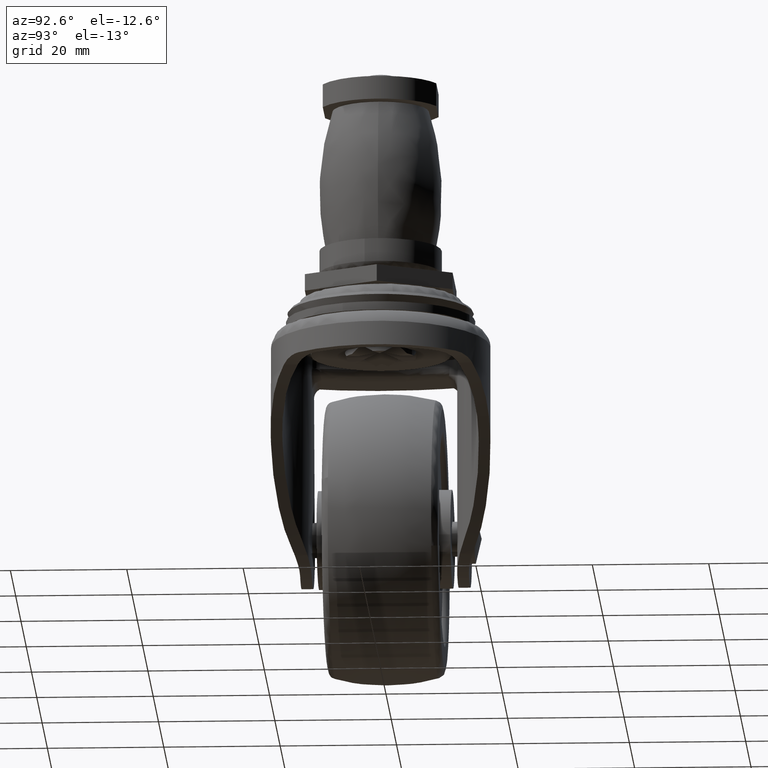
[diagram: clean part render]
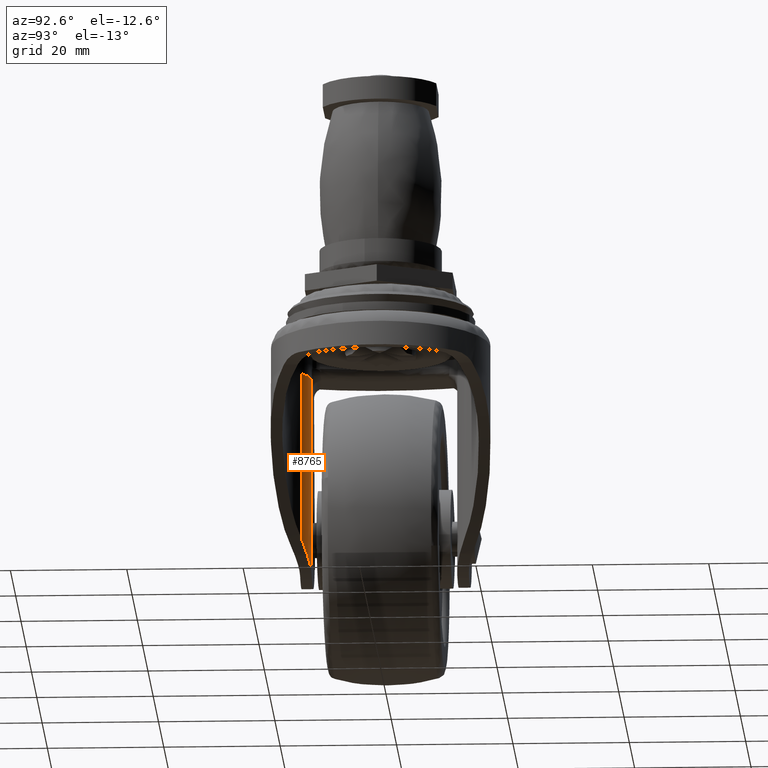
[diagram: same view with one face highlighted and labeled with its STEP entity id]
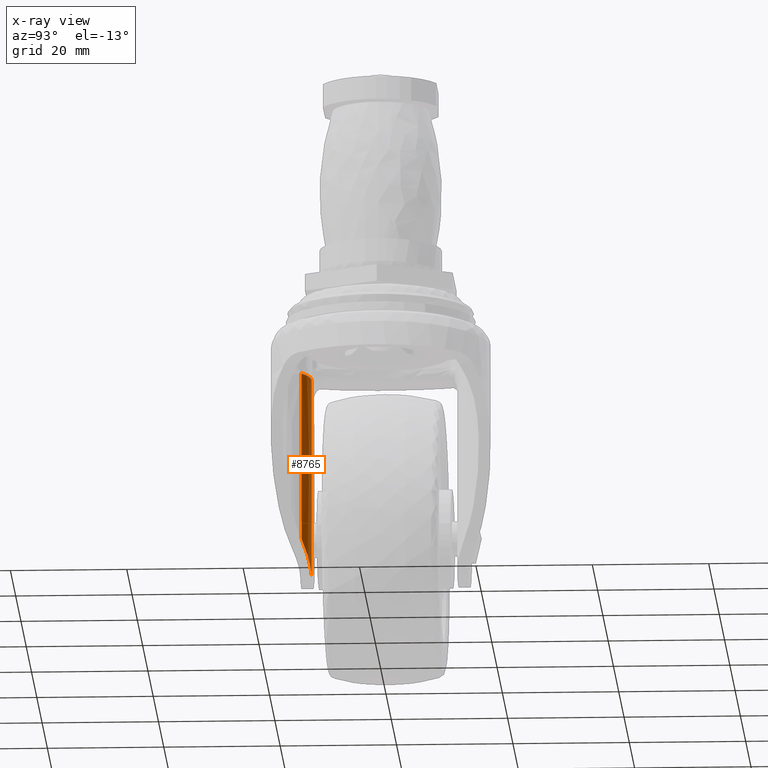
[diagram: x-ray of the same camera — body ghosted, the highlighted face saturated]
A machine part, auxiliary view. The second image highlights one B-rep face of the part: STEP entity #8765.
The next image is the same camera in x-ray: the body ghosted, the highlighted face saturated — about 0% of this face is hidden behind the body in this view.
In plain terms, the highlighted face is a freeform B-spline surface patch.
Its self-contained STEP definition (entity closure, byte-faithful):
#8692=CARTESIAN_POINT('',(-14.611302524693622,-12.503993825917989,-47.996503645575913));
#8693=CARTESIAN_POINT('',(-14.611302524693622,-12.503993825917989,-11.889100374107668));
#8694=CARTESIAN_POINT('',(-11.598037271927742,-12.416936753291690,-47.996503645575899));
#8695=CARTESIAN_POINT('',(-11.598037271927742,-12.416936753291690,-11.889100374107661));
#8696=CARTESIAN_POINT('',(-9.140247712245992,-14.162392824850023,-47.996503645575899));
#8697=CARTESIAN_POINT('',(-9.140247712245992,-14.162392824850023,-11.889100374107668));
#8705=(BOUNDED_SURFACE()B_SPLINE_SURFACE(1,2,((#8692,#8694,#8696),(#8693,#8695,#8697)),.UNSPECIFIED.,.F.,.F.,.U.)B_SPLINE_SURFACE_WITH_KNOTS((2,2),(3,3),(0.0,36.107403271468257),(0.0,5.868813238233783),.UNSPECIFIED.)GEOMETRIC_REPRESENTATION_ITEM()RATIONAL_B_SPLINE_SURFACE(((0.999694770072393,0.946917392037695,0.997551996903967),(0.999694770072393,0.946917392037695,0.997551996903967)))REPRESENTATION_ITEM('')SURFACE());
#8706=CARTESIAN_POINT('',(-14.351389509793160,-12.500240000000000,-47.137314989502897));
#8707=VERTEX_POINT('',#8706);
#8708=CARTESIAN_POINT('',(-11.164195731720181,-13.083483153030320,-44.295090351913252));
#8709=VERTEX_POINT('',#8708);
#8710=CARTESIAN_POINT('',(-14.351389509793179,-12.500240000000000,-47.137314989502897));
#8711=CARTESIAN_POINT('',(-14.039643422530290,-12.500240000000010,-46.946456354502267));
#8712=CARTESIAN_POINT('',(-13.740236062421490,-12.516351815684210,-46.743627083969528));
#8713=CARTESIAN_POINT('',(-13.164320985617699,-12.574175706962730,-46.314976161298169));
#8714=CARTESIAN_POINT('',(-12.887820612245910,-12.615918371230659,-46.089151172388050));
#8715=CARTESIAN_POINT('',(-12.356773760834139,-12.719880512183400,-45.614725025958627));
#8716=CARTESIAN_POINT('',(-12.102230038795170,-12.782120283756530,-45.366124205934447));
#8717=CARTESIAN_POINT('',(-11.736665921107710,-12.887499264150870,-44.975796725130991));
#8718=CARTESIAN_POINT('',(-11.617480767655881,-12.924656577590660,-44.842704237159289));
#8719=CARTESIAN_POINT('',(-11.386003129993570,-13.001924186644059,-44.572348305863237));
#8720=CARTESIAN_POINT('',(-11.273510328952050,-13.042088733910610,-44.434879481031061));
#8721=CARTESIAN_POINT('',(-11.164195731720181,-13.083483153030320,-44.295090351913252));
#8722=B_SPLINE_CURVE_WITH_KNOTS('',3,(#8710,#8711,#8712,#8713,#8714,#8715,#8716,#8717,#8718,#8719,#8720,#8721),.UNSPECIFIED.,.F.,.U.,(4,2,2,2,2,4),(0.0,0.250000000000000,0.500000000000000,0.750000000000000,0.875000000000000,1.0),.UNSPECIFIED.);
#8723=EDGE_CURVE('',#8707,#8709,#8722,.T.);
#8724=ORIENTED_EDGE('',*,*,#8723,.F.);
#8725=CARTESIAN_POINT('',(-14.351389509792821,-12.500240000000000,-12.769768746582860));
#8726=VERTEX_POINT('',#8725);
#8727=CARTESIAN_POINT('',(-14.351389509792821,-12.500240000000000,-12.769768746582860));
#8728=CARTESIAN_POINT('',(-14.351389509793160,-12.500240000000000,-47.137314989502897));
#8729=QUASI_UNIFORM_CURVE('',1,(#8727,#8728),.UNSPECIFIED.,.F.,.U.);
#8730=EDGE_CURVE('',#8726,#8707,#8729,.T.);
#8731=ORIENTED_EDGE('',*,*,#8730,.F.);
#8732=CARTESIAN_POINT('',(-9.354776643714279,-14.014663210831740,-12.769768746582519));
#8733=VERTEX_POINT('',#8732);
#8734=CARTESIAN_POINT('',(-14.351389509792821,-12.500240000000000,-12.769768746582860));
#8735=CARTESIAN_POINT('',(-11.623579838962780,-12.500240000000000,-12.769768746582505));
#8736=CARTESIAN_POINT('',(-9.354776643714269,-14.014663210831721,-12.769768746582500));
#8744=(BOUNDED_CURVE()B_SPLINE_CURVE(2,(#8734,#8735,#8736),.UNSPECIFIED.,.F.,.U.)CURVE()GEOMETRIC_REPRESENTATION_ITEM()QUASI_UNIFORM_CURVE()RATIONAL_B_SPLINE_CURVE((1.0,0.957008556480043,1.0))REPRESENTATION_ITEM(''));
#8745=EDGE_CURVE('',#8726,#8733,#8744,.T.);
#8746=ORIENTED_EDGE('',*,*,#8745,.T.);
#8747=CARTESIAN_POINT('',(-9.354776643714288,-14.014663210831721,-41.863463631811037));
#8748=VERTEX_POINT('',#8747);
#8749=CARTESIAN_POINT('',(-9.354776643714288,-14.014663210831721,-41.863463631811037));
#8750=CARTESIAN_POINT('',(-9.354776643714279,-14.014663210831740,-12.769768746582519));
#8751=QUASI_UNIFORM_CURVE('',1,(#8749,#8750),.UNSPECIFIED.,.F.,.U.);
#8752=EDGE_CURVE('',#8748,#8733,#8751,.T.);
#8753=ORIENTED_EDGE('',*,*,#8752,.F.);
#8754=CARTESIAN_POINT('',(-11.164195731720181,-13.083483153030260,-44.295090351913252));
#8755=CARTESIAN_POINT('',(-10.846329634884150,-13.203850280715660,-43.888607764131457));
#8756=CARTESIAN_POINT('',(-10.536808923090479,-13.341568905082379,-43.482559893027798));
#8757=CARTESIAN_POINT('',(-9.933822095036661,-13.651670880499619,-42.671792319557007));
#8758=CARTESIAN_POINT('',(-9.640355298206861,-13.824039826755330,-42.267067607365853));
#8759=CARTESIAN_POINT('',(-9.354776643714288,-14.014663210831740,-41.863463631811037));
#8760=B_SPLINE_CURVE_WITH_KNOTS('',3,(#8754,#8755,#8756,#8757,#8758,#8759),.UNSPECIFIED.,.F.,.U.,(4,2,4),(0.0,0.500000000000000,1.0),.UNSPECIFIED.);
#8761=EDGE_CURVE('',#8709,#8748,#8760,.T.);
#8762=ORIENTED_EDGE('',*,*,#8761,.F.);
#8763=EDGE_LOOP('',(#8724,#8731,#8746,#8753,#8762));
#8764=FACE_OUTER_BOUND('',#8763,.T.);
#8765=ADVANCED_FACE('',(#8764),#8705,.T.);